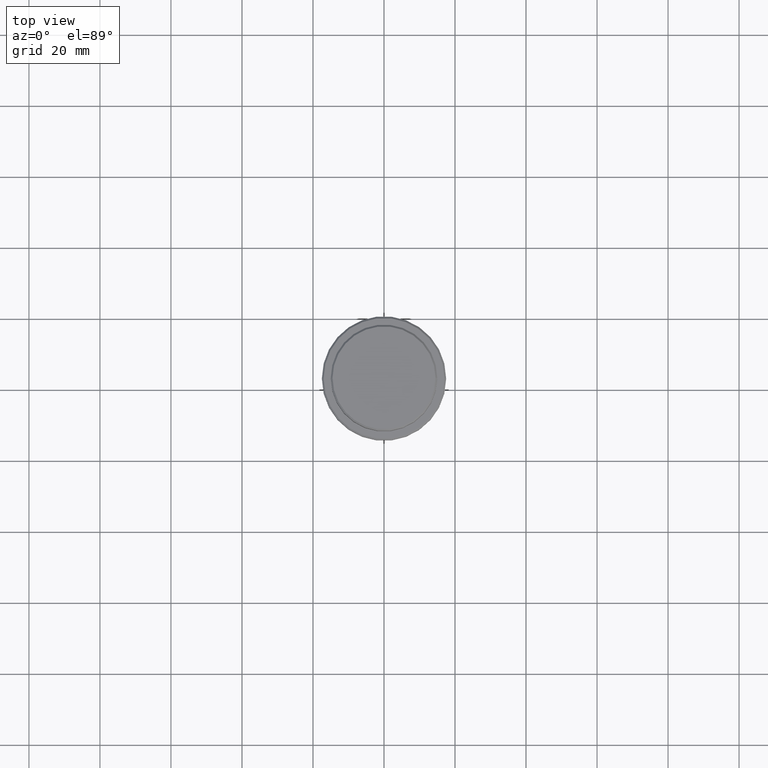
[diagram: clean part render]
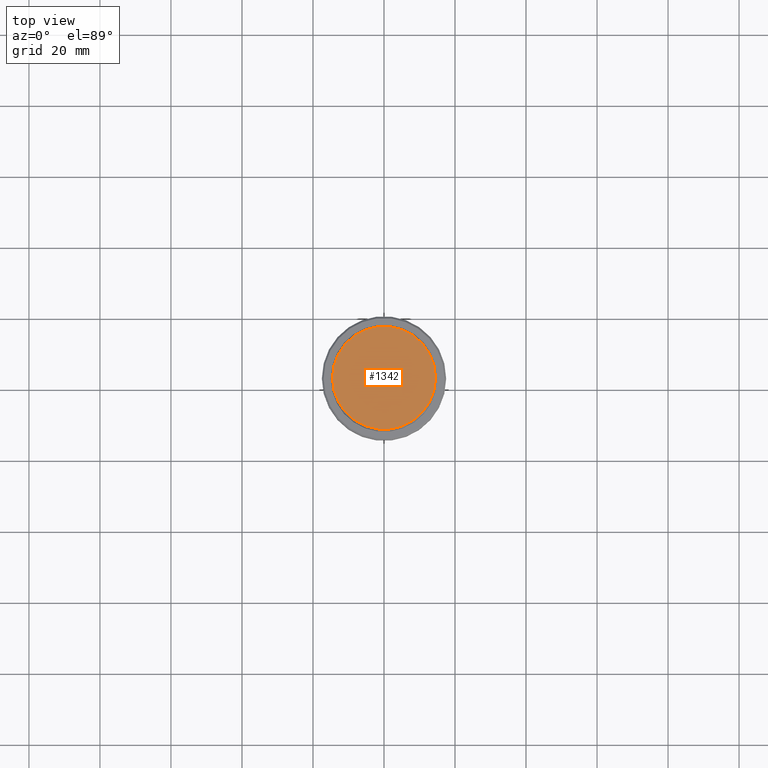
[diagram: same view with one face highlighted and labeled with its STEP entity id]
A machine part, top view. The second image highlights one B-rep face of the part: STEP entity #1342.
In plain terms, the highlighted planar face has unit normal (0, -0, 1).
Its self-contained STEP definition (entity closure, byte-faithful):
#259 = AXIS2_PLACEMENT_3D ( 'NONE', #768, #309, #737 ) ;
#309 = DIRECTION ( 'NONE',  ( -0.000000000000000000, -0.000000000000000000, 1.000000000000000000 ) ) ;
#352 = VERTEX_POINT ( 'NONE', #685 ) ;
#362 = ORIENTED_EDGE ( 'NONE', *, *, #417, .T. ) ;
#391 = DIRECTION ( 'NONE',  ( -0.000000000000000000, -0.000000000000000000, 1.000000000000000000 ) ) ;
#393 = VERTEX_POINT ( 'NONE', #777 ) ;
#396 = CARTESIAN_POINT ( 'NONE',  ( 0.000000000000000000, 0.000000000000000000, 0.000000000000000000 ) ) ;
#417 = EDGE_CURVE ( 'NONE', #393, #352, #1352, .T. ) ;
#584 = EDGE_LOOP ( 'NONE', ( #362, #637 ) ) ;
#613 = CARTESIAN_POINT ( 'NONE',  ( 0.000000000000000000, 0.000000000000000000, 0.000000000000000000 ) ) ;
#637 = ORIENTED_EDGE ( 'NONE', *, *, #965, .T. ) ;
#673 = CIRCLE ( 'NONE', #1160, 14.49999999999998401 ) ;
#685 = CARTESIAN_POINT ( 'NONE',  ( 14.49999999999998401, 1.806354028742345013E-15, 0.000000000000000000 ) ) ;
#687 = DIRECTION ( 'NONE',  ( 1.000000000000000000, 0.000000000000000000, 0.000000000000000000 ) ) ;
#737 = DIRECTION ( 'NONE',  ( 1.000000000000000000, 0.000000000000000000, 0.000000000000000000 ) ) ;
#768 = CARTESIAN_POINT ( 'NONE',  ( 0.000000000000000000, 0.000000000000000000, 0.000000000000000000 ) ) ;
#777 = CARTESIAN_POINT ( 'NONE',  ( -14.49999999999998401, 0.000000000000000000, 0.000000000000000000 ) ) ;
#821 = DIRECTION ( 'NONE',  ( 0.000000000000000000, -0.000000000000000000, 1.000000000000000000 ) ) ;
#829 = DIRECTION ( 'NONE',  ( 1.000000000000000000, 0.000000000000000000, 0.000000000000000000 ) ) ;
#965 = EDGE_CURVE ( 'NONE', #352, #393, #673, .T. ) ;
#1021 = PLANE ( 'NONE',  #1417 ) ;
#1160 = AXIS2_PLACEMENT_3D ( 'NONE', #613, #391, #829 ) ;
#1260 = FACE_OUTER_BOUND ( 'NONE', #584, .T. ) ;
#1342 = ADVANCED_FACE ( 'NONE', ( #1260 ), #1021, .T. ) ;
#1352 = CIRCLE ( 'NONE', #259, 14.49999999999998401 ) ;
#1417 = AXIS2_PLACEMENT_3D ( 'NONE', #396, #821, #687 ) ;